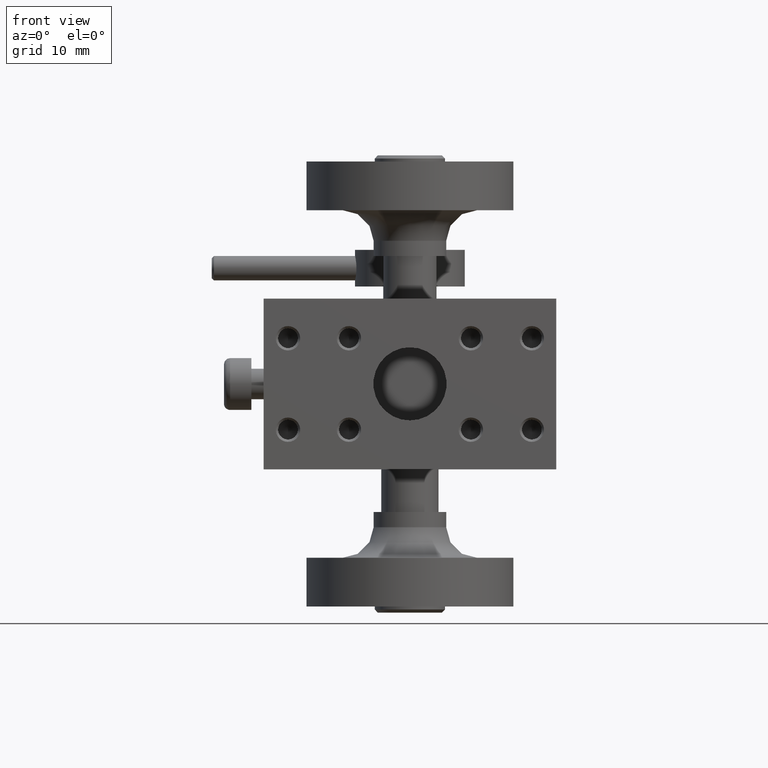
[diagram: clean part render]
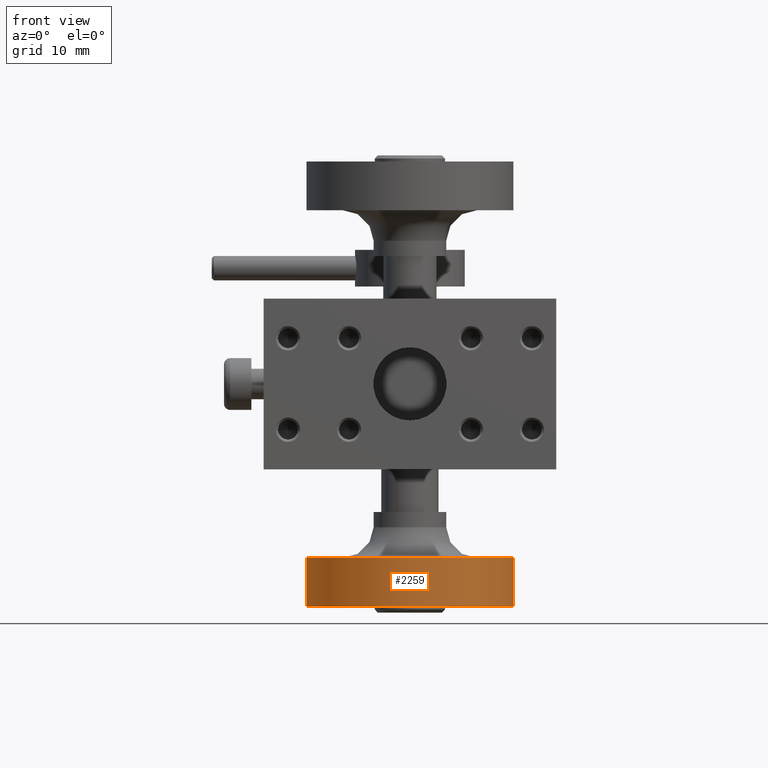
[diagram: same view with one face highlighted and labeled with its STEP entity id]
A machine part, front view. The second image highlights one B-rep face of the part: STEP entity #2259.
In plain terms, the highlighted cylindrical surface (bore or boss wall) has radius 17 mm, axis along (0, 0, -1).
Its self-contained STEP definition (entity closure, byte-faithful):
#495 = CYLINDRICAL_SURFACE ( 'NONE', #4849, 17.00000000000000000 ) ;
#578 = ORIENTED_EDGE ( 'NONE', *, *, #2444, .T. ) ;
#1143 = CIRCLE ( 'NONE', #2462, 17.00000000000000000 ) ;
#1166 = ORIENTED_EDGE ( 'NONE', *, *, #3922, .T. ) ;
#1312 = VERTEX_POINT ( 'NONE', #2559 ) ;
#1378 = CARTESIAN_POINT ( 'NONE',  ( 0.000000000000000000, 31.50000000000000000, -28.50000000000000355 ) ) ;
#1570 = VERTEX_POINT ( 'NONE', #2039 ) ;
#1739 = DIRECTION ( 'NONE',  ( 0.000000000000000000, 1.000000000000000000, 0.000000000000000000 ) ) ;
#2039 = CARTESIAN_POINT ( 'NONE',  ( 0.000000000000000000, 48.50000000000000000, -36.50000000000000000 ) ) ;
#2259 = ADVANCED_FACE ( 'NONE', ( #3219, #4779 ), #495, .T. ) ;
#2397 = EDGE_LOOP ( 'NONE', ( #1166 ) ) ;
#2444 = EDGE_CURVE ( 'NONE', #1570, #1570, #4115, .T. ) ;
#2462 = AXIS2_PLACEMENT_3D ( 'NONE', #1378, #2919, #1739 ) ;
#2559 = CARTESIAN_POINT ( 'NONE',  ( 0.000000000000000000, 48.50000000000000000, -28.50000000000000355 ) ) ;
#2723 = AXIS2_PLACEMENT_3D ( 'NONE', #3341, #3700, #4187 ) ;
#2919 = DIRECTION ( 'NONE',  ( 0.000000000000000000, 9.251858538542970348E-17, -1.000000000000000000 ) ) ;
#3219 = FACE_OUTER_BOUND ( 'NONE', #2397, .T. ) ;
#3341 = CARTESIAN_POINT ( 'NONE',  ( 0.000000000000000000, 31.50000000000000000, -36.50000000000000000 ) ) ;
#3354 = EDGE_LOOP ( 'NONE', ( #578 ) ) ;
#3577 = DIRECTION ( 'NONE',  ( 0.000000000000000000, 9.251858538542970348E-17, -1.000000000000000000 ) ) ;
#3700 = DIRECTION ( 'NONE',  ( -0.000000000000000000, -9.251858538542970348E-17, 1.000000000000000000 ) ) ;
#3922 = EDGE_CURVE ( 'NONE', #1312, #1312, #1143, .T. ) ;
#4115 = CIRCLE ( 'NONE', #2723, 17.00000000000000000 ) ;
#4187 = DIRECTION ( 'NONE',  ( 0.000000000000000000, 1.000000000000000000, 0.000000000000000000 ) ) ;
#4449 = DIRECTION ( 'NONE',  ( 0.000000000000000000, 1.000000000000000000, 0.000000000000000000 ) ) ;
#4751 = CARTESIAN_POINT ( 'NONE',  ( 0.000000000000000000, 31.50000000000000000, -37.50000000000000000 ) ) ;
#4779 = FACE_OUTER_BOUND ( 'NONE', #3354, .T. ) ;
#4849 = AXIS2_PLACEMENT_3D ( 'NONE', #4751, #3577, #4449 ) ;